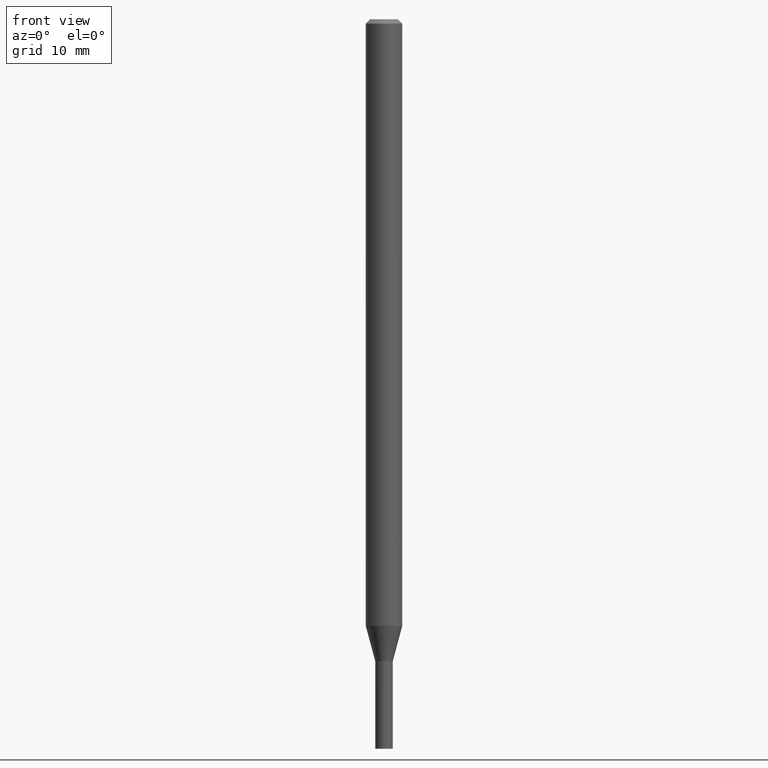
[diagram: clean part render]
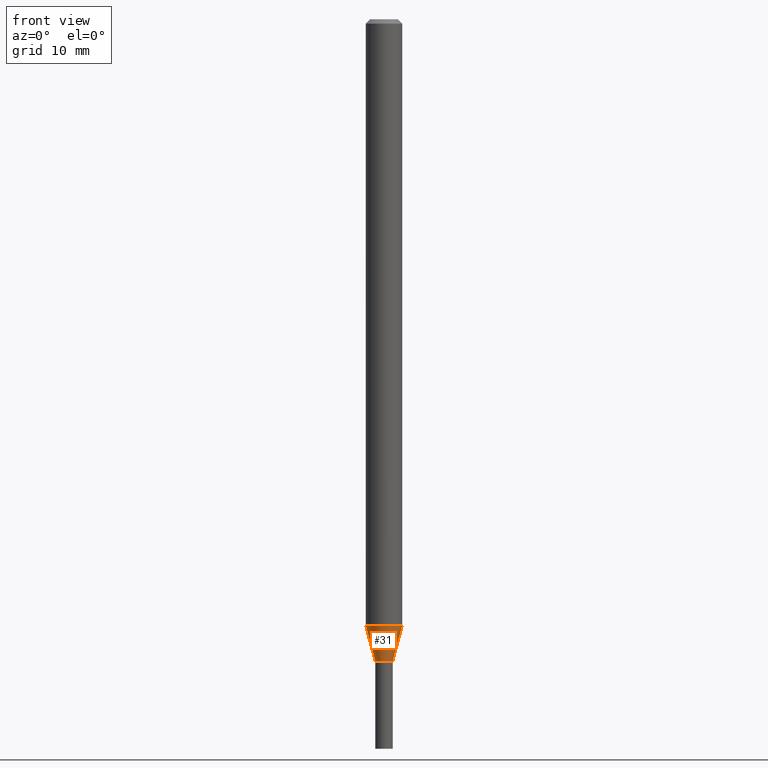
[diagram: same view with one face highlighted and labeled with its STEP entity id]
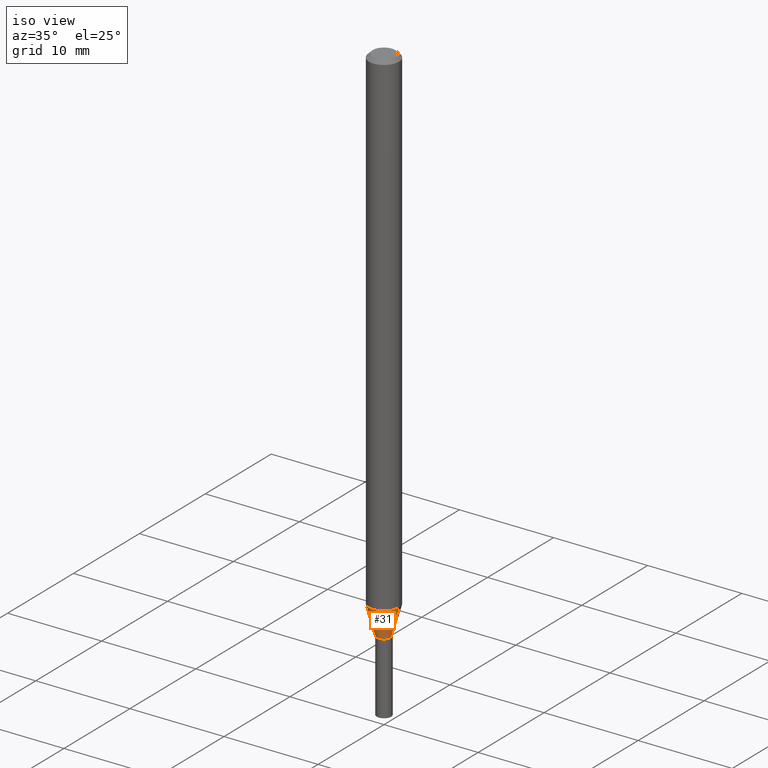
[diagram: same view with one face highlighted and labeled with its STEP entity id]
A machine part, front view. The second image highlights one B-rep face of the part: STEP entity #31.
A second angle (iso view) of the same face is appended — the face is thin or edge-on in the first view.
In plain terms, the highlighted conical surface has half-angle 15 deg.
Its self-contained STEP definition (entity closure, byte-faithful):
#28 = EDGE_LOOP ( 'NONE', ( #47, #244, #189, #255 ) ) ;
#31 = ADVANCED_FACE ( 'NONE', ( #211 ), #369, .T. ) ;
#40 = CARTESIAN_POINT ( 'NONE',  ( -0.02999999999999964154, -7.468096124726893113E-15, -2.200000000000000178 ) ) ;
#41 = DIRECTION ( 'NONE',  ( 0.2588190451025215166, 1.565188264969620784E-15, 0.9659258262890679791 ) ) ;
#47 = ORIENTED_EDGE ( 'NONE', *, *, #68, .F. ) ;
#64 = DIRECTION ( 'NONE',  ( 1.000000000000000000, -6.982962677686254878E-15, 0.000000000000000000 ) ) ;
#66 = CARTESIAN_POINT ( 'NONE',  ( -0.02999999999999964154, -7.140889161724453994E-15, -2.200000000000000178 ) ) ;
#68 = EDGE_CURVE ( 'NONE', #178, #280, #430, .T. ) ;
#99 = EDGE_CURVE ( 'NONE', #178, #388, #338, .T. ) ;
#124 = EDGE_CURVE ( 'NONE', #388, #460, #185, .T. ) ;
#137 = DIRECTION ( 'NONE',  ( 1.000000000000000000, -6.982962677686262766E-15, 0.000000000000000000 ) ) ;
#138 = AXIS2_PLACEMENT_3D ( 'NONE', #175, #288, #137 ) ;
#141 = CARTESIAN_POINT ( 'NONE',  ( 5.380031373607300737E-29, -7.681258945454920203E-15, -2.200000000000000178 ) ) ;
#164 = VECTOR ( 'NONE', #41, 39.37007874015748143 ) ;
#175 = CARTESIAN_POINT ( 'NONE',  ( 5.083416424034546588E-29, -7.257771408572077491E-15, -2.078708348754010782 ) ) ;
#178 = VERTEX_POINT ( 'NONE', #66 ) ;
#185 = LINE ( 'NONE', #396, #164 ) ;
#189 = ORIENTED_EDGE ( 'NONE', *, *, #124, .T. ) ;
#194 = AXIS2_PLACEMENT_3D ( 'NONE', #330, #397, #258 ) ;
#211 = FACE_OUTER_BOUND ( 'NONE', #28, .T. ) ;
#213 = CARTESIAN_POINT ( 'NONE',  ( 0.06250000000000000000, -7.694206575927469161E-15, -2.078708348754010782 ) ) ;
#244 = ORIENTED_EDGE ( 'NONE', *, *, #99, .T. ) ;
#255 = ORIENTED_EDGE ( 'NONE', *, *, #440, .F. ) ;
#258 = DIRECTION ( 'NONE',  ( 1.000000000000000000, -6.982962677686254878E-15, 0.000000000000000000 ) ) ;
#280 = VERTEX_POINT ( 'NONE', #411 ) ;
#288 = DIRECTION ( 'NONE',  ( -2.445468806185136597E-29, 3.491481338843145583E-15, 1.000000000000000000 ) ) ;
#330 = CARTESIAN_POINT ( 'NONE',  ( 5.380031373607300737E-29, -7.681258945454920203E-15, -2.200000000000000178 ) ) ;
#338 = CIRCLE ( 'NONE', #194, 0.02999999999999964154 ) ;
#339 = CIRCLE ( 'NONE', #138, 0.06250000000000000000 ) ;
#364 = DIRECTION ( 'NONE',  ( -0.2588190451025215166, 5.211531920934551042E-15, 0.9659258262890679791 ) ) ;
#369 = CONICAL_SURFACE ( 'NONE', #417, 0.02999999999999964154, 0.2617993877991502405 ) ;
#385 = VECTOR ( 'NONE', #364, 39.37007874015748143 ) ;
#388 = VERTEX_POINT ( 'NONE', #441 ) ;
#391 = DIRECTION ( 'NONE',  ( -2.445468806185136597E-29, 3.491481338843145583E-15, 1.000000000000000000 ) ) ;
#396 = CARTESIAN_POINT ( 'NONE',  ( 0.02999999999999964154, -7.890747825785505364E-15, -2.200000000000000178 ) ) ;
#397 = DIRECTION ( 'NONE',  ( -2.445468806185136597E-29, 3.491481338843145583E-15, 1.000000000000000000 ) ) ;
#411 = CARTESIAN_POINT ( 'NONE',  ( -0.06250000000000000000, -6.813682198722014086E-15, -2.078708348754010782 ) ) ;
#417 = AXIS2_PLACEMENT_3D ( 'NONE', #141, #391, #64 ) ;
#430 = LINE ( 'NONE', #40, #385 ) ;
#440 = EDGE_CURVE ( 'NONE', #280, #460, #339, .T. ) ;
#441 = CARTESIAN_POINT ( 'NONE',  ( 0.02999999999999964154, -7.890747825785505364E-15, -2.200000000000000178 ) ) ;
#460 = VERTEX_POINT ( 'NONE', #213 ) ;